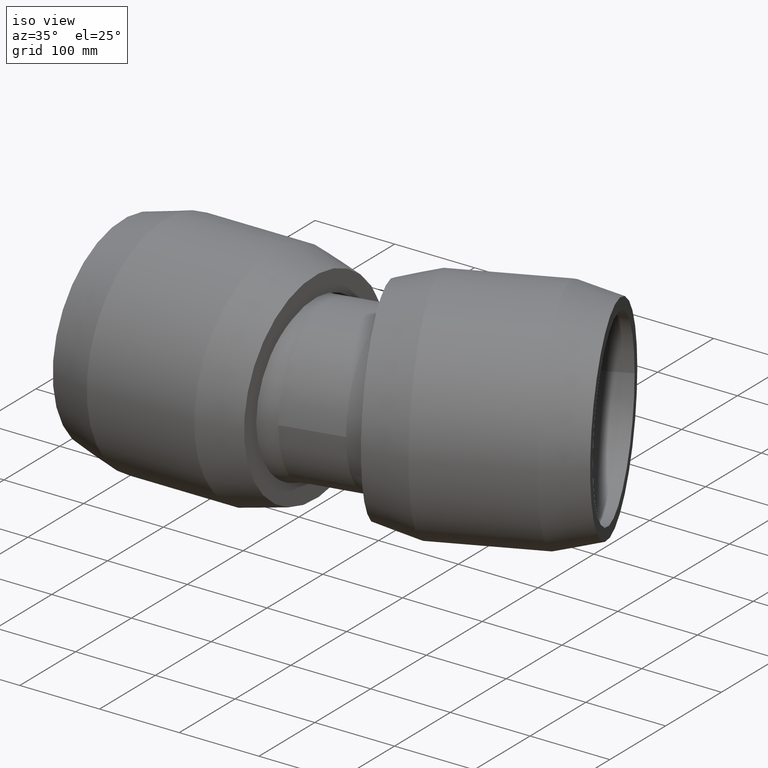
[diagram: clean part render]
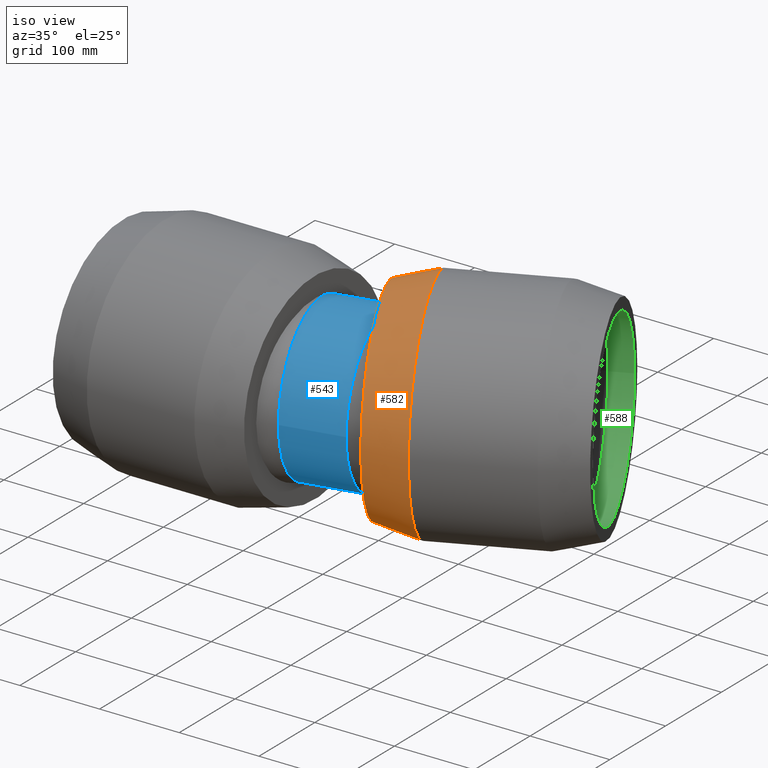
[diagram: same view with three faces highlighted in distinct colors, each labeled with its STEP entity id]
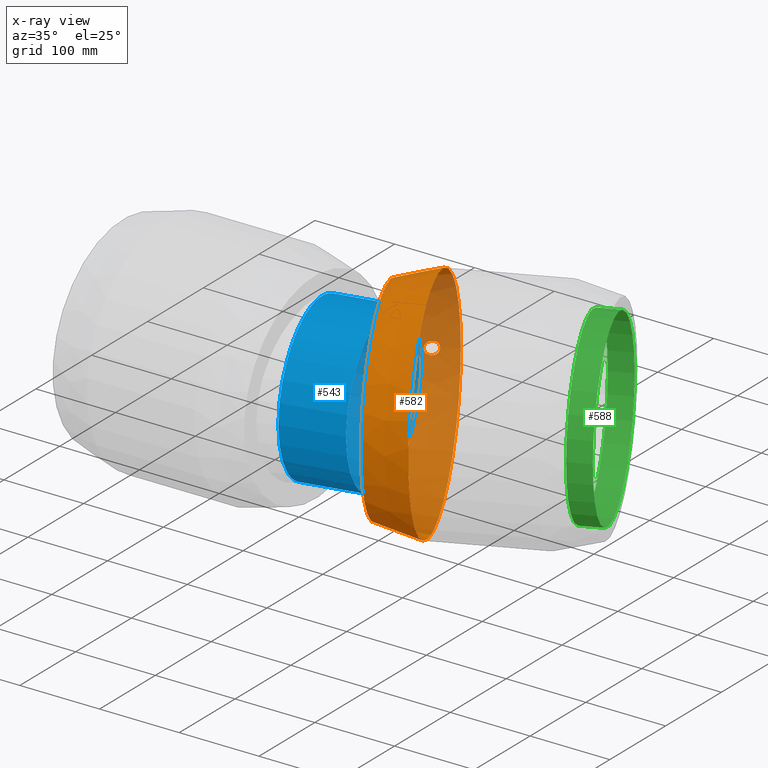
[diagram: x-ray of the same camera — body ghosted, the three highlighted faces saturated]
A machine part, iso view with three faces highlighted in distinct colors.
The next image is the same camera in x-ray (body ghosted, the three faces saturated) — at least one of them is partly hidden behind the body in this view.
Their STEP definitions:

[orange] entity #582 — the highlighted conical surface has half-angle 15.033 deg.
#22=CONICAL_SURFACE('',#675,133.95,15.0332581293883);
#102=FACE_BOUND('',#244,.T.);
#103=FACE_BOUND('',#245,.T.);
#154=FACE_OUTER_BOUND('',#243,.T.);
#243=EDGE_LOOP('',(#518));
#244=EDGE_LOOP('',(#519));
#245=EDGE_LOOP('',(#520));
#269=B_SPLINE_CURVE_WITH_KNOTS('',3,(#1283,#1284,#1285,#1286,#1287,#1288,
#1289,#1290,#1291,#1292,#1293,#1294,#1295,#1296,#1297,#1298,#1299,#1300,
#1301,#1302,#1303,#1304,#1305,#1306,#1307,#1308,#1309,#1310,#1311,#1312,
#1313,#1314,#1315,#1316),.UNSPECIFIED.,.T.,.F.,(4,2,2,2,2,2,2,2,2,2,2,2,
2,2,2,2,4),(0.,0.312540545432881,0.625081090865761,0.931095676491268,1.23711026211677,
1.54312484774228,1.84913943336779,2.16167997880067,2.47422052423355,2.7985535358481,
3.12288654746265,3.43539417965336,3.74790181184406,4.06040944403477,4.37291707622547,
4.69725008784003,5.02158309945458),.UNSPECIFIED.);
#310=CIRCLE('',#673,141.);
#312=CIRCLE('',#676,126.9);
#359=VERTEX_POINT('',#1282);
#362=VERTEX_POINT('',#1358);
#364=VERTEX_POINT('',#1363);
#415=EDGE_CURVE('',#359,#359,#269,.T.);
#418=EDGE_CURVE('',#362,#362,#310,.T.);
#420=EDGE_CURVE('',#364,#364,#312,.T.);
#518=ORIENTED_EDGE('',*,*,#420,.T.);
#519=ORIENTED_EDGE('',*,*,#415,.T.);
#520=ORIENTED_EDGE('',*,*,#418,.F.);
#582=ADVANCED_FACE('',(#154,#102,#103),#22,.T.);
#673=AXIS2_PLACEMENT_3D('',#1359,#853,#854);
#675=AXIS2_PLACEMENT_3D('',#1362,#857,#858);
#676=AXIS2_PLACEMENT_3D('',#1364,#859,#860);
#853=DIRECTION('center_axis',(0.913545457642601,0.406736643075801,1.19788532833232E-16));
#854=DIRECTION('ref_axis',(1.19788532833232E-16,2.54618386665284E-17,-1.));
#857=DIRECTION('center_axis',(0.913545457642601,0.406736643075801,1.19788532833232E-16));
#858=DIRECTION('ref_axis',(-0.4067366430758,0.913545457642601,-2.54618386665283E-17));
#859=DIRECTION('center_axis',(0.913545457642601,0.406736643075801,1.19788532833232E-16));
#860=DIRECTION('ref_axis',(1.19788532833232E-16,2.54618386665284E-17,-1.));
#1282=CARTESIAN_POINT('',(163.550334802785,147.294281028903,8.19286936313482));
#1283=CARTESIAN_POINT('Ctrl Pts',(163.550334802785,147.294281028903,8.19286936313482));
#1284=CARTESIAN_POINT('Ctrl Pts',(162.740875508419,146.638651052389,8.1762557278805));
#1285=CARTESIAN_POINT('Ctrl Pts',(161.86944093336,145.948573317375,7.96072062464416));
#1286=CARTESIAN_POINT('Ctrl Pts',(160.251668423194,144.696203255674,7.10958920398563));
#1287=CARTESIAN_POINT('Ctrl Pts',(159.505800971581,144.133515087184,6.47368121196488));
#1288=CARTESIAN_POINT('Ctrl Pts',(158.334352638041,143.262244000823,5.01772011361724));
#1289=CARTESIAN_POINT('Ctrl Pts',(157.826110806769,142.891722756399,4.10618057598268));
#1290=CARTESIAN_POINT('Ctrl Pts',(157.149865819994,142.402219882293,2.10733707458504));
#1291=CARTESIAN_POINT('Ctrl Pts',(156.982239213691,142.282654973354,1.02004861875169));
#1292=CARTESIAN_POINT('Ctrl Pts',(156.982239213691,142.282654973354,-1.02004861875168));
#1293=CARTESIAN_POINT('Ctrl Pts',(157.149865819994,142.402219882293,-2.10733707458503));
#1294=CARTESIAN_POINT('Ctrl Pts',(157.826110806769,142.891722756399,-4.10618057598267));
#1295=CARTESIAN_POINT('Ctrl Pts',(158.334352638041,143.262244000823,-5.01772011361723));
#1296=CARTESIAN_POINT('Ctrl Pts',(159.505800971581,144.133515087184,-6.47368121196486));
#1297=CARTESIAN_POINT('Ctrl Pts',(160.251668423194,144.696203255674,-7.10958920398562));
#1298=CARTESIAN_POINT('Ctrl Pts',(161.86944093336,145.948573317375,-7.96072062464416));
#1299=CARTESIAN_POINT('Ctrl Pts',(162.740875508419,146.638651052389,-8.17625572788049));
#1300=CARTESIAN_POINT('Ctrl Pts',(164.390335802839,147.974648577674,-8.21010984740042));
#1301=CARTESIAN_POINT('Ctrl Pts',(165.28153804033,148.713399374888,-8.01617772400986));
#1302=CARTESIAN_POINT('Ctrl Pts',(166.916204045069,150.098372046057,-7.18637332201255));
#1303=CARTESIAN_POINT('Ctrl Pts',(167.660089691435,150.744083166828,-6.55047978788963));
#1304=CARTESIAN_POINT('Ctrl Pts',(168.814009833882,151.758541032796,-5.08568202226872));
#1305=CARTESIAN_POINT('Ctrl Pts',(169.308773374686,152.201111621374,-4.16961193341816));
#1306=CARTESIAN_POINT('Ctrl Pts',(169.967434520981,152.793888904272,-2.14774144502105));
#1307=CARTESIAN_POINT('Ctrl Pts',(170.131343638871,152.943233377806,-1.04169210730235));
#1308=CARTESIAN_POINT('Ctrl Pts',(170.131343638871,152.943233377806,1.04169210730235));
#1309=CARTESIAN_POINT('Ctrl Pts',(169.967434520981,152.793888904272,2.14774144502106));
#1310=CARTESIAN_POINT('Ctrl Pts',(169.308773374686,152.201111621374,4.16961193341817));
#1311=CARTESIAN_POINT('Ctrl Pts',(168.814009833882,151.758541032796,5.08568202226873));
#1312=CARTESIAN_POINT('Ctrl Pts',(167.660089691435,150.744083166828,6.55047978788964));
#1313=CARTESIAN_POINT('Ctrl Pts',(166.916204045069,150.098372046057,7.18637332201256));
#1314=CARTESIAN_POINT('Ctrl Pts',(165.28153804033,148.713399374888,8.01617772400987));
#1315=CARTESIAN_POINT('Ctrl Pts',(164.390335802839,147.974648577674,8.21010984740043));
#1316=CARTESIAN_POINT('Ctrl Pts',(163.550334802785,147.294281028903,8.19286936313482));
#1358=CARTESIAN_POINT('',(186.634040452289,166.322722016396,7.45782748942668E-15));
#1359=CARTESIAN_POINT('Origin',(243.983907125977,37.5128124887892,1.10479467414072E-14));
#1362=CARTESIAN_POINT('Origin',(220.003338862858,26.8359756080495,7.90349775453484E-15));
#1363=CARTESIAN_POINT('',(144.407890593421,132.088057302156,1.52794144088006E-15));
#1364=CARTESIAN_POINT('Origin',(196.02277059974,16.1591387273097,4.7590487676625E-15));

[blue] entity #543 — the highlighted cylindrical surface (bore or boss wall) has radius 98.5034 mm, axis along (-0.9781, -0.2079, 0).
#45=CYLINDRICAL_SURFACE('',#601,98.503405444099);
#65=FACE_BOUND('',#168,.T.);
#115=FACE_OUTER_BOUND('',#167,.T.);
#167=EDGE_LOOP('',(#437));
#168=EDGE_LOOP('',(#438));
#273=CIRCLE('',#596,98.503405444099);
#276=CIRCLE('',#600,98.503405444099);
#322=VERTEX_POINT('',#1001);
#326=VERTEX_POINT('',#1113);
#375=EDGE_CURVE('',#322,#322,#273,.T.);
#380=EDGE_CURVE('',#326,#326,#276,.T.);
#437=ORIENTED_EDGE('',*,*,#380,.F.);
#438=ORIENTED_EDGE('',*,*,#375,.T.);
#543=ADVANCED_FACE('',(#115,#65),#45,.T.);
#596=AXIS2_PLACEMENT_3D('',#1002,#699,#700);
#600=AXIS2_PLACEMENT_3D('',#1114,#707,#708);
#601=AXIS2_PLACEMENT_3D('',#1115,#709,#710);
#699=DIRECTION('center_axis',(-0.978147600733806,-0.207911690817759,0.));
#700=DIRECTION('ref_axis',(0.207911690817759,-0.978147600733806,0.));
#707=DIRECTION('center_axis',(-0.978147600733806,-0.207911690817759,0.));
#708=DIRECTION('ref_axis',(0.207911690817759,-0.978147600733806,0.));
#709=DIRECTION('center_axis',(-0.978147600733806,-0.207911690817759,0.));
#710=DIRECTION('ref_axis',(0.20791169081776,-0.978147600733806,0.));
#1001=CARTESIAN_POINT('',(215.446770992366,-80.416192653308,0.));
#1002=CARTESIAN_POINT('Origin',(194.966761415176,15.9346770459468,0.));
#1113=CARTESIAN_POINT('',(141.536018761754,-96.1264080178918,0.));
#1114=CARTESIAN_POINT('Origin',(121.056009184564,0.224461681362929,0.));
#1115=CARTESIAN_POINT('Origin',(176.489073357523,12.0071232048008,0.));

[green] entity #588 — the highlighted cylindrical surface (bore or boss wall) has radius 112.5 mm, axis along (0.9135, 0.4067, 0).
#62=CYLINDRICAL_SURFACE('',#686,112.5);
#109=FACE_BOUND('',#257,.T.);
#160=FACE_OUTER_BOUND('',#256,.T.);
#256=EDGE_LOOP('',(#532));
#257=EDGE_LOOP('',(#533));
#316=CIRCLE('',#685,112.5);
#317=CIRCLE('',#687,112.5);
#368=VERTEX_POINT('',#1376);
#369=VERTEX_POINT('',#1379);
#424=EDGE_CURVE('',#368,#368,#316,.T.);
#425=EDGE_CURVE('',#369,#369,#317,.T.);
#532=ORIENTED_EDGE('',*,*,#425,.T.);
#533=ORIENTED_EDGE('',*,*,#424,.F.);
#588=ADVANCED_FACE('',(#160,#109),#62,.F.);
#685=AXIS2_PLACEMENT_3D('',#1377,#877,#878);
#686=AXIS2_PLACEMENT_3D('',#1378,#879,#880);
#687=AXIS2_PLACEMENT_3D('',#1380,#881,#882);
#877=DIRECTION('center_axis',(0.913545457642601,0.406736643075801,1.19788532833232E-16));
#878=DIRECTION('ref_axis',(1.19788532833232E-16,2.54618386665284E-17,-1.));
#879=DIRECTION('center_axis',(0.913545457642601,0.406736643075801,1.19788532833232E-16));
#880=DIRECTION('ref_axis',(-0.406736643075801,0.913545457642601,-2.54618386665283E-17));
#881=DIRECTION('center_axis',(0.913545457642601,0.406736643075801,1.19788532833232E-16));
#882=DIRECTION('ref_axis',(1.19788532833232E-16,2.54618386665284E-17,-1.));
#1376=CARTESIAN_POINT('',(343.936535273944,205.161171044172,2.72897608783232E-14));
#1377=CARTESIAN_POINT('Origin',(389.694407619972,102.387307059379,3.01542177283077E-14));
#1378=CARTESIAN_POINT('Origin',(402.484044026968,108.081620062441,3.18312571879729E-14));
#1379=CARTESIAN_POINT('',(369.515808087937,216.549797050294,3.06438397976537E-14));
#1380=CARTESIAN_POINT('Origin',(415.273680433964,113.775933065502,3.35082966476382E-14));